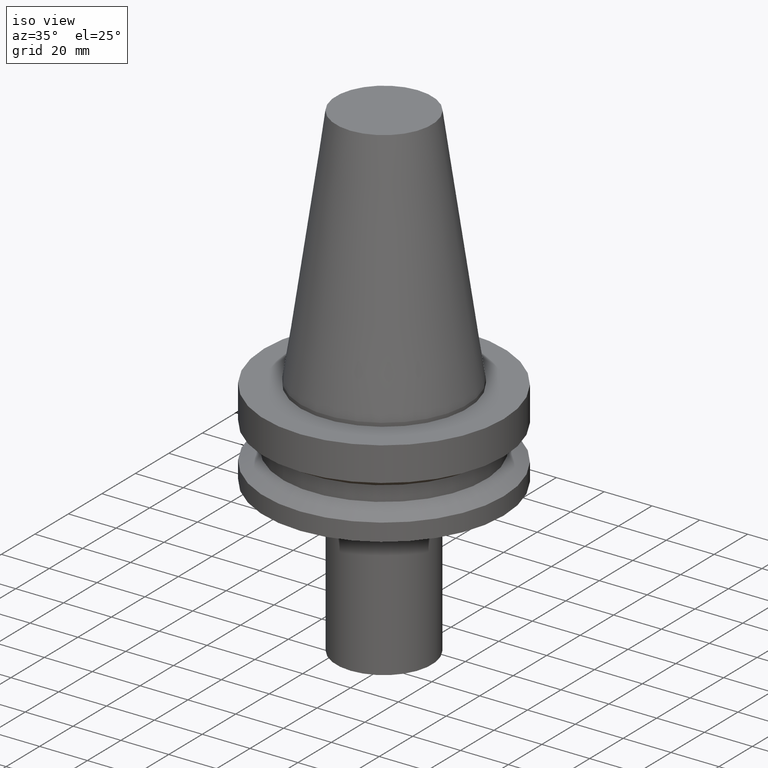
[diagram: clean part render]
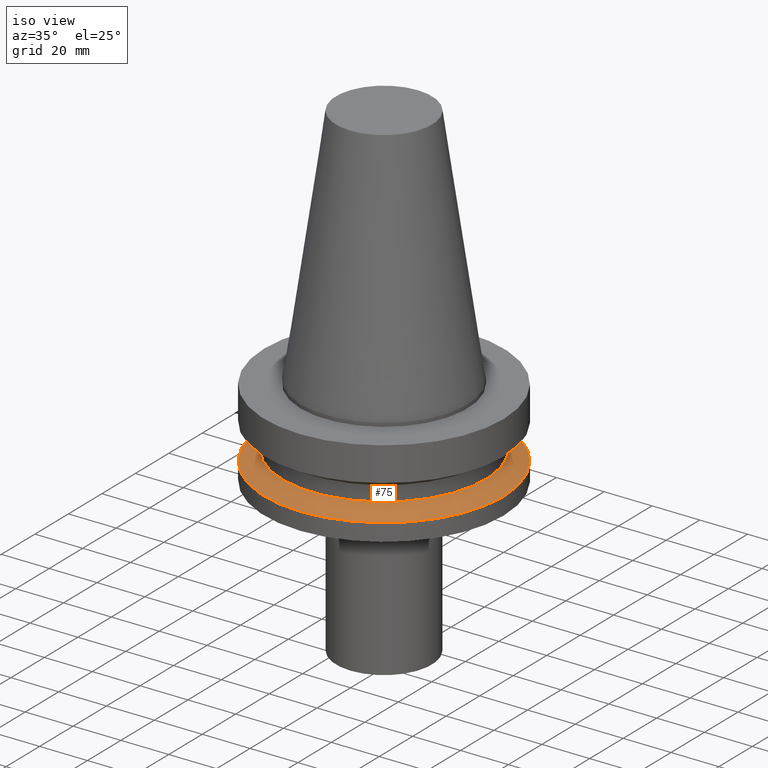
[diagram: same view with one face highlighted and labeled with its STEP entity id]
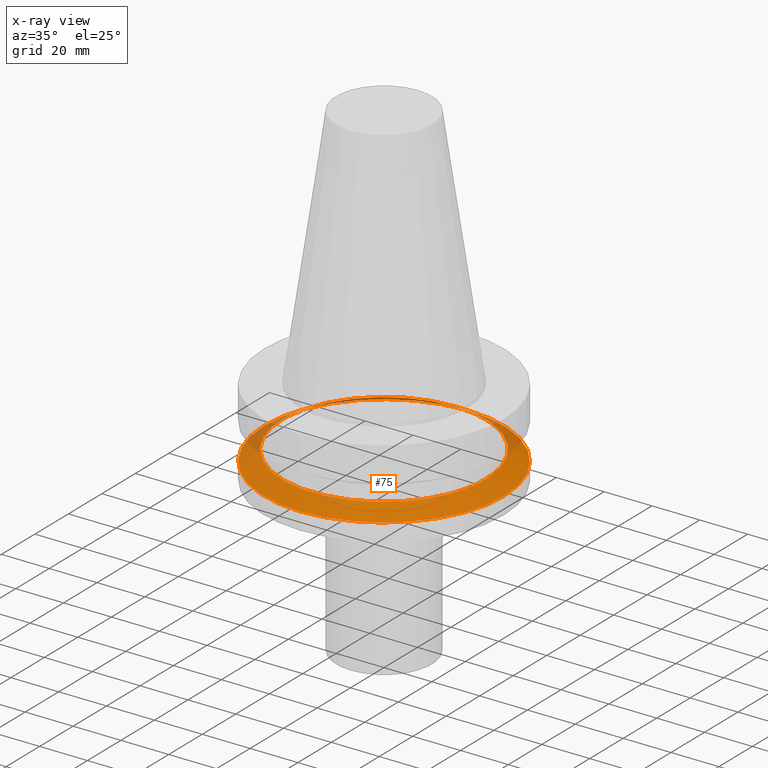
[diagram: x-ray of the same camera — body ghosted, the highlighted face saturated]
A machine part, iso view. The second image highlights one B-rep face of the part: STEP entity #75.
The next image is the same camera in x-ray: the body ghosted, the highlighted face saturated — about 12% of this face is hidden behind the body in this view.
In plain terms, the highlighted conical surface has half-angle 60 deg.
Its self-contained STEP definition (entity closure, byte-faithful):
#75=ADVANCED_FACE('Unnamed[1]',(#173,#174),#175,.T.);
#99=EDGE_CURVE('Unnamed[1]',#211,#211,#212,.T.);
#101=EDGE_CURVE('Unnamed[1]',#214,#214,#215,.T.);
#173=FACE_BOUND('',#298,.T.);
#174=FACE_BOUND('',#299,.T.);
#175=CONICAL_SURFACE('',#300,46.25,1.04719755108881);
#211=VERTEX_POINT('',#345);
#212=CIRCLE('',#346,42.5);
#214=VERTEX_POINT('',#349);
#215=CIRCLE('',#350,50.0);
#298=EDGE_LOOP('',(#427));
#299=EDGE_LOOP('',(#428));
#300=AXIS2_PLACEMENT_3D('',#429,#430,#431);
#345=CARTESIAN_POINT('',(1.61468902694396E-015,42.5,-26.36987298));
#346=AXIS2_PLACEMENT_3D('',#472,#473,#474);
#349=CARTESIAN_POINT('',(1.87983283669119E-015,50.0,-30.7000000000001));
#350=AXIS2_PLACEMENT_3D('',#475,#476,#477);
#427=ORIENTED_EDGE('',*,*,#101,.F.);
#428=ORIENTED_EDGE('',*,*,#99,.T.);
#429=CARTESIAN_POINT('',(1.74726093181758E-015,3.49452186363515E-015,-28.53493649));
#430=DIRECTION('',(6.12323399573676E-017,1.22464679914735E-016,-1.0));
#431=DIRECTION('',(-1.23259516440783E-032,1.0,1.22464679914735E-016));
#472=CARTESIAN_POINT('',(1.61468902694396E-015,3.22937805388792E-015,-26.36987298));
#473=DIRECTION('',(6.12323399573677E-017,1.22464679914735E-016,-1.0));
#474=DIRECTION('',(-1.23259516440783E-032,1.0,1.22464679914735E-016));
#475=CARTESIAN_POINT('',(1.87983283669119E-015,3.75966567338238E-015,-30.7000000000001));
#476=DIRECTION('',(6.12323399573677E-017,1.22464679914735E-016,-1.0));
#477=DIRECTION('',(-1.23259516440783E-032,1.0,1.22464679914735E-016));